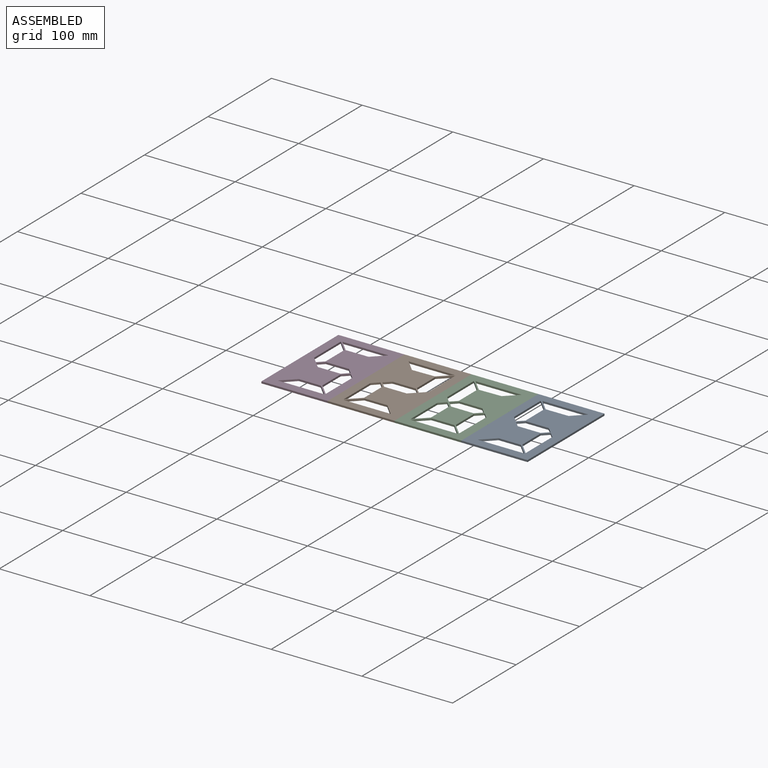
[diagram: assembled view]
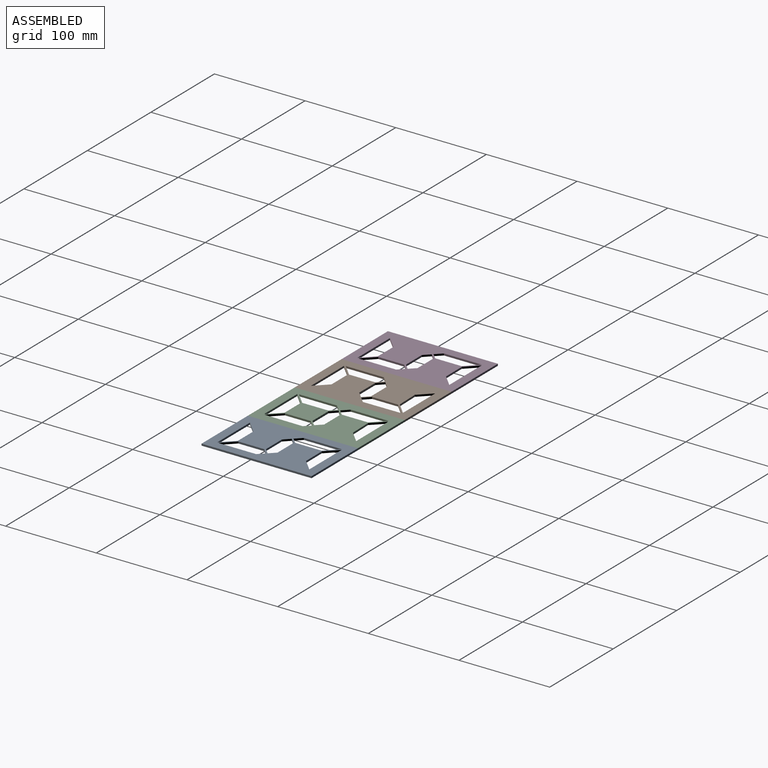
[diagram: assembled view, second angle]
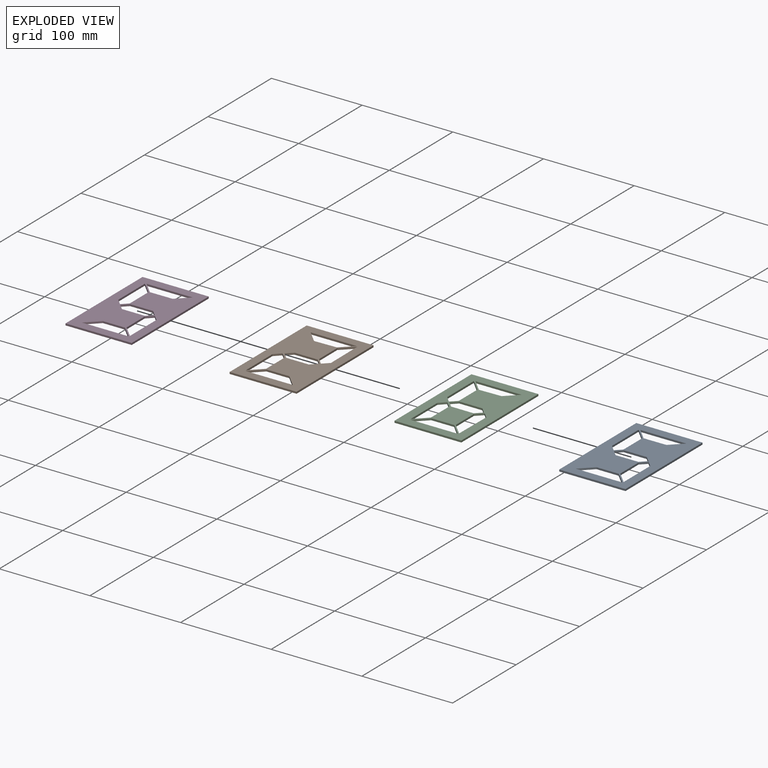
[diagram: exploded view]
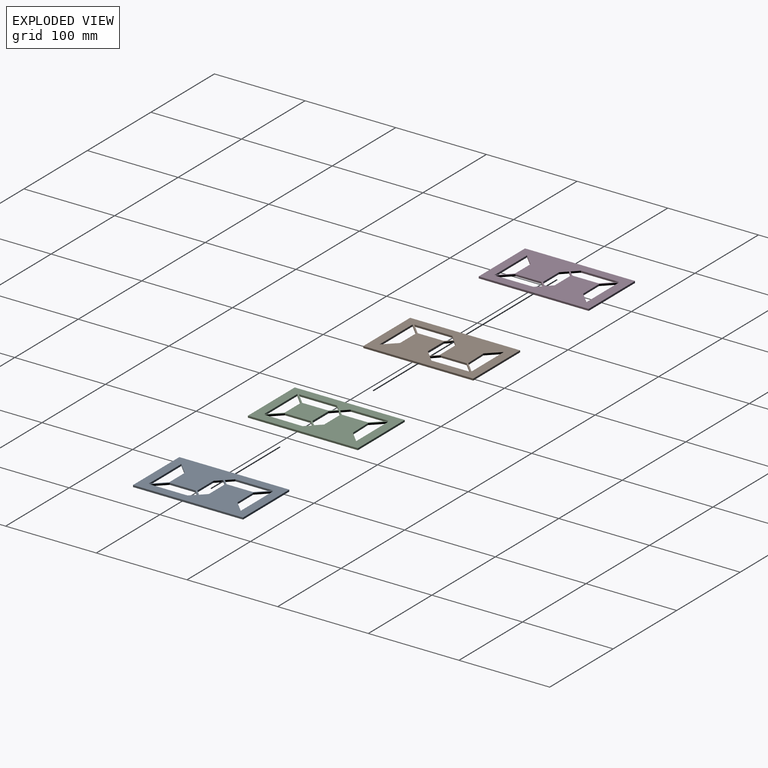
[diagram: exploded view, second angle]
ASSEMBLY  parts=4 mates=3
PART A: 30 faces, bbox 73x121.3x2 mm
  f0: plane 25.1x2mm, normal (-0.01,1,0), area 50.2mm2, adj f1,f27,f28,f29
  f1: plane 12.9x12.66mm, normal (0.71,0.7,0), area 36.1mm2, adj f0,f2,f28,f29
  f2: plane 50.77x2mm, normal (0,-1,0), area 101.5mm2, adj f1,f27,f28,f29
  f3: plane 6.41x6.29mm, normal (-0.71,-0.7,0), area 18mm2, adj f4,f22,f28,f29
  f4: plane 41.79x2mm, normal (-1,0,0), area 83.6mm2, adj f3,f5,f28,f29
  f5: plane 13.11x12.87mm, normal (0.71,0.7,0), area 36.8mm2, adj f4,f6,f28,f29
  f6: plane 28.63x2mm, normal (1,0,0), area 57.3mm2, adj f5,f22,f28,f29
  f7: plane 13.38x13.14mm, normal (-0.71,-0.7,0), area 37.5mm2, adj f8,f23,f28,f29
  f8: plane 51.12x2mm, normal (0,1,0), area 102.2mm2, adj f7,f9,f28,f29
  f9: plane 13.64x13.38mm, normal (0.7,-0.71,0), area 38.2mm2, adj f8,f23,f28,f29
  f10: plane 73x2mm, normal (0,1,0), area 146mm2, adj f11,f24,f28,f29
  f11: plane 121.3x2mm, normal (-1,0,0), area 242.6mm2, adj f10,f12,f28,f29
  f12: plane 73x2mm, normal (0,-1,0), area 146mm2, adj f11,f24,f28,f29
  f13: plane 6.52x6.4mm, normal (0.71,0.7,0), area 18.3mm2, adj f14,f25,f28,f29
  f14: plane 6.4x6.28mm, normal (0.7,-0.71,0), area 17.9mm2, adj f13,f15,f28,f29
  f15: plane 25.29x2mm, normal (0,-1,0), area 50.6mm2, adj f14,f16,f28,f29
  f16: plane 6.44x6.32mm, normal (-0.71,-0.7,0), area 18.1mm2, adj f15,f17,f28,f29
  f17: plane 6.48x6.36mm, normal (-0.7,0.71,0), area 18.2mm2, adj f16,f25,f28,f29
  f18: plane 41.89x2mm, normal (1,0,0), area 83.8mm2, adj f19,f26,f28,f29
  f19: plane 13.28x13.04mm, normal (-0.71,-0.7,0), area 37.2mm2, adj f18,f20,f28,f29
  f20: plane 29.09x2mm, normal (-1,0,0), area 58.2mm2, adj f19,f21,f28,f29
  f21: plane 6.4x6.28mm, normal (-0.7,0.71,0), area 17.9mm2, adj f20,f26,f28,f29
  f22: plane 6.58x6.46mm, normal (0.7,-0.71,0), area 18.4mm2, adj f3,f6,f28,f29
  f23: plane 24.35x2mm, normal (0,-1,0), area 48.7mm2, adj f7,f9,f28,f29
  f24: plane 121.3x2mm, normal (1,0,0), area 242.6mm2, adj f10,f12,f28,f29
  f25: plane 25.13x2mm, normal (0,1,0), area 50.3mm2, adj f13,f17,f28,f29
  f26: plane 6.76x6.64mm, normal (0.71,0.7,0), area 19mm2, adj f18,f21,f28,f29
  f27: plane 13x12.76mm, normal (-0.7,0.71,0), area 36.4mm2, adj f0,f2,f28,f29
  f28: plane 121.3x73mm, normal (0,0,1), area 6458.1mm2, adj f0,f1,f2,f3,f4,f5,f6,f7
  f29: plane 121.3x73mm, normal (0,0,-1), area 6458.1mm2, adj f0,f1,f2,f3,f4,f5,f6,f7
PART B: 30 faces, bbox 73.8x121.3x2 mm
  f0: plane 13.49x13.14mm, normal (-0.72,-0.7,0), area 37.7mm2, adj f1,f27,f28,f29
  f1: plane 52.12x2mm, normal (0,1,0), area 104.2mm2, adj f0,f2,f28,f29
  f2: plane 13.85x13.49mm, normal (0.7,-0.72,0), area 38.7mm2, adj f1,f27,f28,f29
  f3: plane 6.58x6.41mm, normal (-0.7,0.72,0), area 18.4mm2, adj f4,f22,f28,f29
  f4: plane 7.17x6.99mm, normal (0.72,0.7,0), area 20mm2, adj f3,f5,f28,f29
  f5: plane 28.63x2mm, normal (1,0,0), area 57.3mm2, adj f4,f6,f28,f29
  f6: plane 13.26x12.92mm, normal (0.7,-0.72,0), area 37mm2, adj f5,f22,f28,f29
  f7: plane 28.63x2mm, normal (-1,0,0), area 57.3mm2, adj f8,f23,f28,f29
  f8: plane 13.26x12.92mm, normal (-0.7,0.72,0), area 37mm2, adj f7,f9,f28,f29
  f9: plane 41.84x2mm, normal (1,0,0), area 83.7mm2, adj f8,f10,f28,f29
  f10: plane 6.48x6.31mm, normal (0.72,-0.7,0), area 18.1mm2, adj f9,f23,f28,f29
  f11: plane 6.57x6.4mm, normal (-0.72,-0.7,0), area 18.4mm2, adj f12,f24,f28,f29
  f12: plane 6.87x6.7mm, normal (-0.7,0.72,0), area 19.2mm2, adj f11,f13,f28,f29
  f13: plane 24.92x2mm, normal (0,1,0), area 49.8mm2, adj f12,f14,f28,f29
  f14: plane 6.78x6.6mm, normal (0.72,0.7,0), area 18.9mm2, adj f13,f15,f28,f29
  f15: plane 6.6x6.43mm, normal (0.7,-0.72,0), area 18.4mm2, adj f14,f24,f28,f29
  f16: plane 50.74x2mm, normal (0,-1,0), area 101.5mm2, adj f17,f25,f28,f29
  f17: plane 13.05x12.71mm, normal (-0.7,0.72,0), area 36.4mm2, adj f16,f18,f28,f29
  f18: plane 24.71x2mm, normal (-0.02,1,0), area 49.4mm2, adj f17,f25,f28,f29
  f19: plane 73.76x2mm, normal (0,1,0), area 147.5mm2, adj f20,f26,f28,f29
  f20: plane 121.3x2mm, normal (-1,0,0), area 242.6mm2, adj f19,f21,f28,f29
  f21: plane 73.76x2mm, normal (0,-1,0), area 147.5mm2, adj f20,f26,f28,f29
  f22: plane 42.31x2mm, normal (-1,-0.01,0), area 84.6mm2, adj f3,f6,f28,f29
  f23: plane 6.95x6.77mm, normal (-0.7,-0.72,0), area 19.4mm2, adj f7,f10,f28,f29
  f24: plane 25.39x2mm, normal (0,-1,0), area 50.8mm2, adj f11,f15,f28,f29
  f25: plane 13.33x12.98mm, normal (0.72,0.7,0), area 37.2mm2, adj f16,f18,f28,f29
  f26: plane 121.3x2mm, normal (1,0,0), area 242.6mm2, adj f19,f21,f28,f29
  f27: plane 25.13x2mm, normal (0,-1,0), area 50.3mm2, adj f0,f2,f28,f29
  f28: plane 121.3x73.76mm, normal (0,0,1), area 6479.9mm2, adj f0,f1,f2,f3,f4,f5,f6,f7
  f29: plane 121.3x73.76mm, normal (0,0,-1), area 6479.9mm2, adj f0,f1,f2,f3,f4,f5,f6,f7
PART C: 35 faces, bbox 73.8x121.3x2 mm
  f0: plane 6.48x6.32mm, normal (-0.72,-0.7,0), area 18.1mm2, adj f1,f32,f33,f34
  f1: plane 42.18x2mm, normal (-1,0.01,0), area 84.4mm2, adj f0,f2,f33,f34
  f2: plane 13.26x12.92mm, normal (0.72,0.7,0), area 37mm2, adj f1,f3,f33,f34
  f3: plane 28.63x2mm, normal (1,0,0), area 57.3mm2, adj f2,f32,f33,f34
  f4: plane 13.49x13.14mm, normal (-0.72,-0.7,0), area 37.7mm2, adj f5,f26,f33,f34
  f5: plane 52.12x2mm, normal (0,1,0), area 104.2mm2, adj f4,f6,f33,f34
  f6: plane 13.85x13.49mm, normal (0.7,-0.72,0), area 38.7mm2, adj f5,f26,f33,f34
  f7: plane 28.63x2mm, normal (-1,0,0), area 57.3mm2, adj f8,f27,f33,f34
  f8: plane 13.26x12.92mm, normal (-0.7,0.72,0), area 37mm2, adj f7,f9,f33,f34
  f9: plane 41.84x2mm, normal (1,0,0), area 83.7mm2, adj f8,f10,f33,f34
  f10: plane 6.48x6.31mm, normal (0.72,-0.7,0), area 18.1mm2, adj f9,f27,f33,f34
  f11: plane 50.74x2mm, normal (0,-1,0), area 101.5mm2, adj f12,f28,f33,f34
  f12: plane 13.05x12.71mm, normal (-0.7,0.72,0), area 36.4mm2, adj f11,f13,f33,f34
  f13: plane 24.71x2mm, normal (-0.02,1,0), area 49.4mm2, adj f12,f28,f33,f34
  f14: plane 6.73x6.55mm, normal (0.72,0.7,0), area 18.8mm2, adj f15,f29,f33,f34
  f15: plane 6.55x6.38mm, normal (0.7,-0.72,0), area 18.3mm2, adj f14,f16,f33,f34
  f16: plane 25.29x2mm, normal (0,-1,0), area 50.6mm2, adj f15,f17,f33,f34
  f17: plane 6.57x6.4mm, normal (-0.72,-0.7,0), area 18.4mm2, adj f16,f18,f33,f34
  f18: plane 6.77x6.6mm, normal (-0.7,0.72,0), area 18.9mm2, adj f17,f29,f33,f34
  f19: plane 41.92x2mm, normal (1,0,0), area 83.8mm2, adj f20,f30,f33,f34
  f20: plane 13.61x13.26mm, normal (-0.72,-0.7,0), area 38mm2, adj f19,f21,f33,f34
  f21: plane 28.81x2mm, normal (-1,0,0), area 57.6mm2, adj f20,f22,f33,f34
  f22: plane 6.55x6.38mm, normal (-0.7,0.72,0), area 18.3mm2, adj f21,f30,f33,f34
  f23: plane 73.76x2mm, normal (0,1,0), area 147.5mm2, adj f24,f31,f33,f34
  f24: plane 121.3x2mm, normal (-1,0,0), area 242.6mm2, adj f23,f25,f33,f34
  f25: plane 73.76x2mm, normal (0,-1,0), area 147.5mm2, adj f24,f31,f33,f34
  f26: plane 25.13x2mm, normal (0,-1,0), area 50.3mm2, adj f4,f6,f33,f34
  f27: plane 6.95x6.77mm, normal (-0.7,-0.72,0), area 19.4mm2, adj f7,f10,f33,f34
  f28: plane 13.33x12.98mm, normal (0.72,0.7,0), area 37.2mm2, adj f11,f13,f33,f34
  f29: plane 24.92x2mm, normal (0,1,0), area 49.8mm2, adj f14,f18,f33,f34
  f30: plane 6.89x6.71mm, normal (0.72,0.7,0), area 19.2mm2, adj f19,f22,f33,f34
  f31: plane 121.3x2mm, normal (1,0,0), area 242.6mm2, adj f23,f25,f33,f34
  f32: plane 6.95x6.77mm, normal (0.7,-0.72,0), area 19.4mm2, adj f0,f3,f33,f34
  f33: plane 121.3x73.76mm, normal (0,0,1), area 5985.4mm2, adj f0,f1,f2,f3,f4,f5,f6,f7
  f34: plane 121.3x73.76mm, normal (0,0,-1), area 5985.4mm2, adj f0,f1,f2,f3,f4,f5,f6,f7
PART D: same geometry as A
PLACE A t=(147.54,0,0)mm
PLACE B at identity fixed
PLACE C t=(73.76,0,0)mm
PLACE D t=(-72.97,0,0)mm
MATE fastened B.f20 <-> D.f24  axis (-1,0,0) through (-54.5,12.89,1)mm
MATE fastened C.f31 <-> A.f11  axis (1,0,0) through (93.01,12.89,1)mm
MATE fastened B.f26 <-> C.f24  axis (1,0,0) through (19.25,12.89,1)mm
